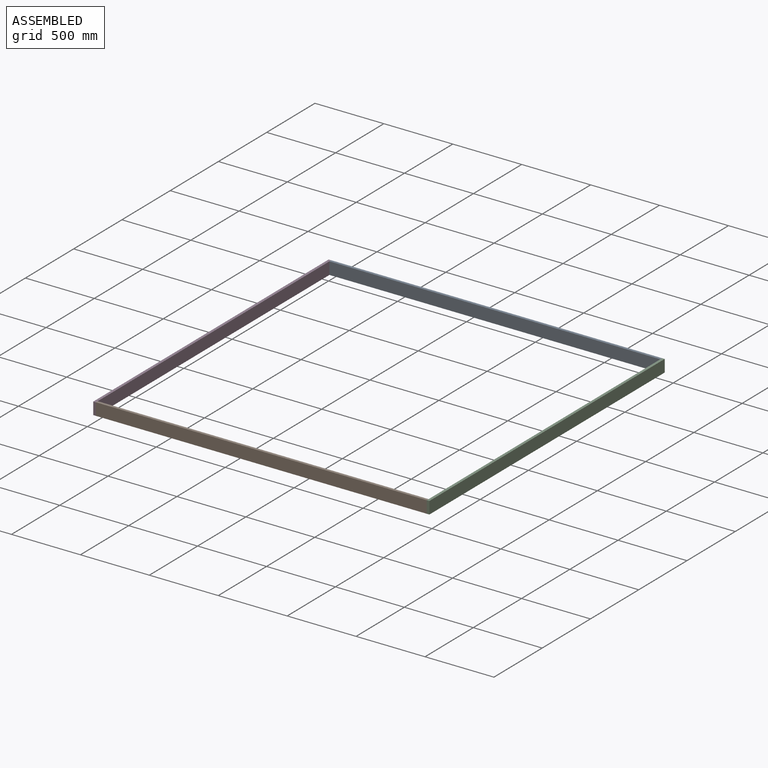
[diagram: assembled view]
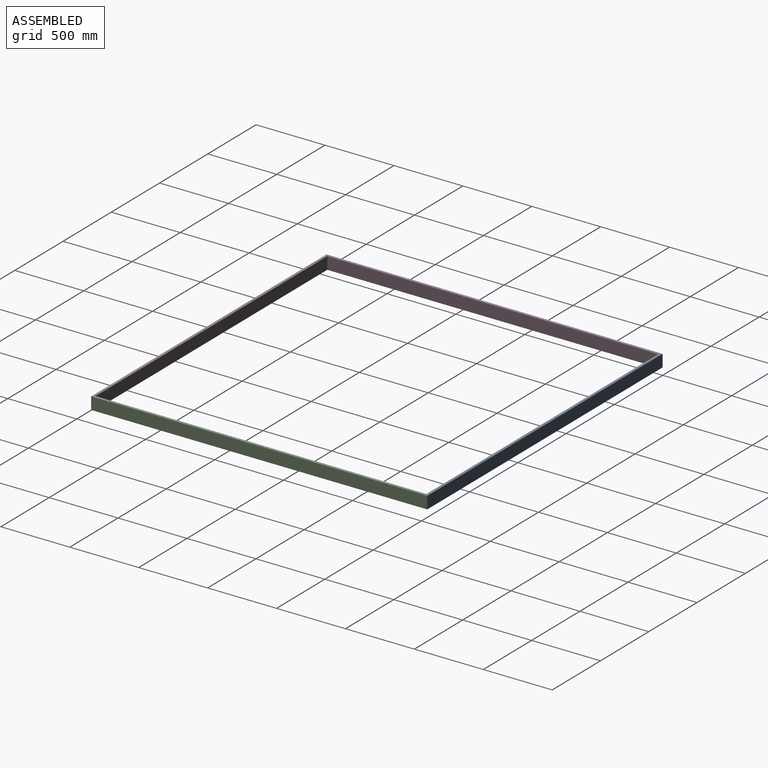
[diagram: assembled view, second angle]
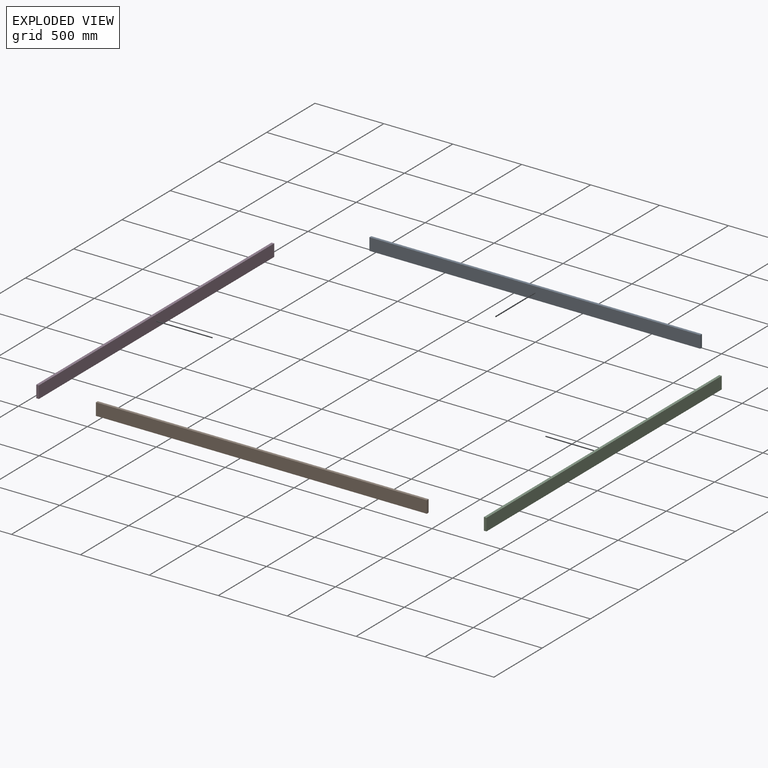
[diagram: exploded view]
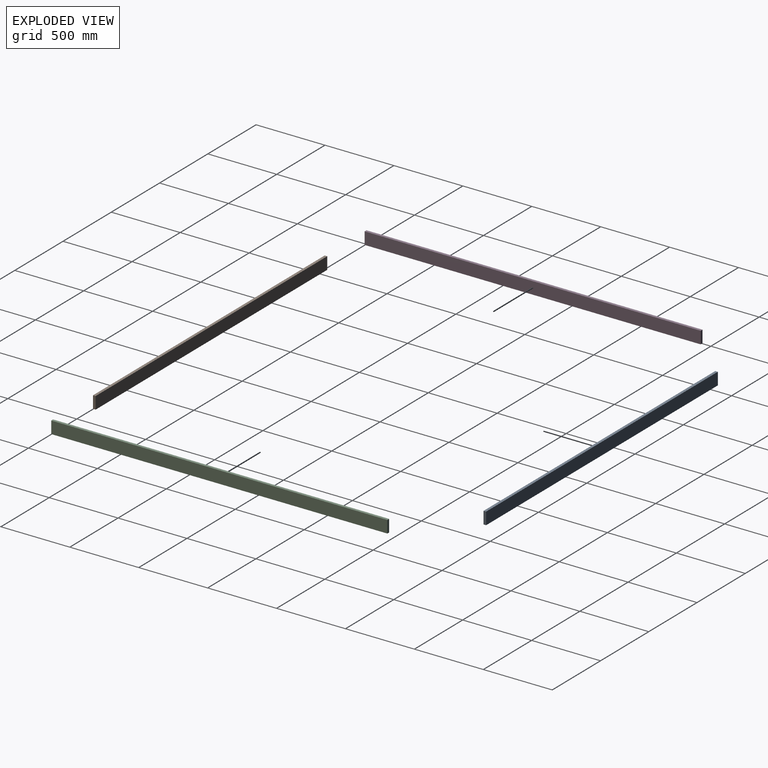
[diagram: exploded view, second angle]
ASSEMBLY  parts=4 mates=3
PART A: 6 faces, bbox 2400.3x19.1x88.9 mm
  f0: plane 2400.3x19.05mm, normal (0,0,1), area 45725.7mm2, adj f1,f3,f4,f5
  f1: plane 88.9x19.05mm, normal (-1,0,0), area 1693.5mm2, adj f0,f2,f4,f5
  f2: plane 2400.3x19.05mm, normal (0,0,-1), area 45725.7mm2, adj f1,f3,f4,f5
  f3: plane 88.9x19.05mm, normal (1,0,0), area 1693.5mm2, adj f0,f2,f4,f5
  f4: plane 2400.3x88.9mm, normal (0,-1,0), area 213386.7mm2, adj f0,f1,f2,f3
  f5: plane 2400.3x88.9mm, normal (0,1,0), area 213386.7mm2, adj f0,f1,f2,f3
PART B: same geometry as A
PART C: 6 faces, bbox 19.1x2438.4x88.9 mm
  f0: plane 88.9x19.05mm, normal (0,1,0), area 1693.5mm2, adj f1,f3,f4,f5
  f1: plane 2438.4x19.05mm, normal (0,0,1), area 46451.5mm2, adj f0,f2,f4,f5
  f2: plane 88.9x19.05mm, normal (0,-1,0), area 1693.5mm2, adj f1,f3,f4,f5
  f3: plane 2438.4x19.05mm, normal (0,0,-1), area 46451.5mm2, adj f0,f2,f4,f5
  f4: plane 2438.4x88.9mm, normal (1,0,0), area 216773.8mm2, adj f0,f1,f2,f3
  f5: plane 2438.4x88.9mm, normal (-1,0,0), area 216773.8mm2, adj f0,f1,f2,f3
PART D: same geometry as C
PLACE A t=(0,2419.35,0)mm
PLACE B at identity
PLACE C at identity
PLACE D t=(-2419.35,0,0)mm
MATE fastened C.f0 <-> A.f5  axis (0,1,0) through (2419.35,0,0)mm
MATE fastened D.f2 <-> B.f4  axis (0,-1,0) through (19.05,-2438.4,0)mm
MATE fastened A.f5 <-> D.f0  axis (0,1,0) through (19.05,0,0)mm
